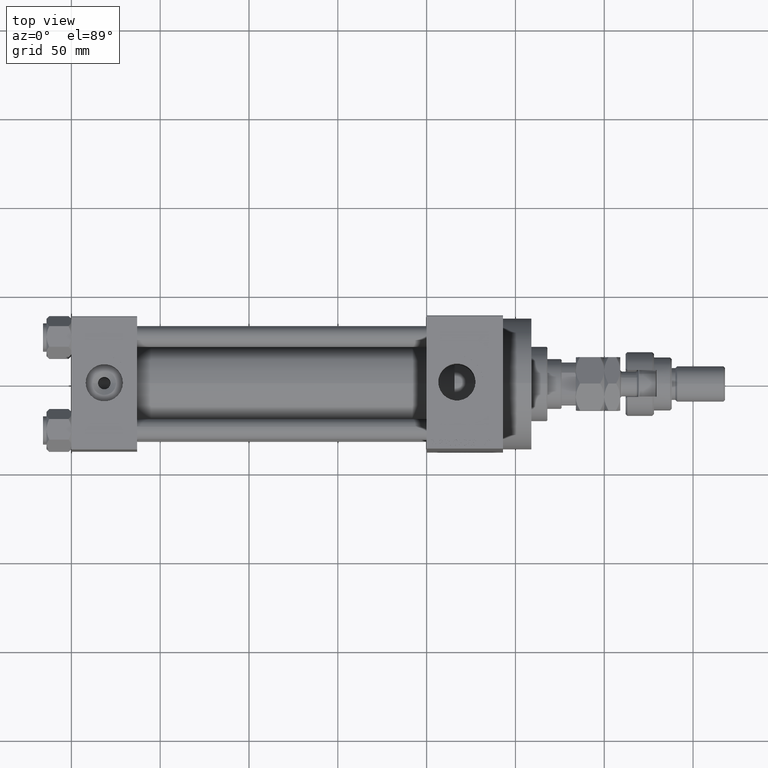
[diagram: clean part render]
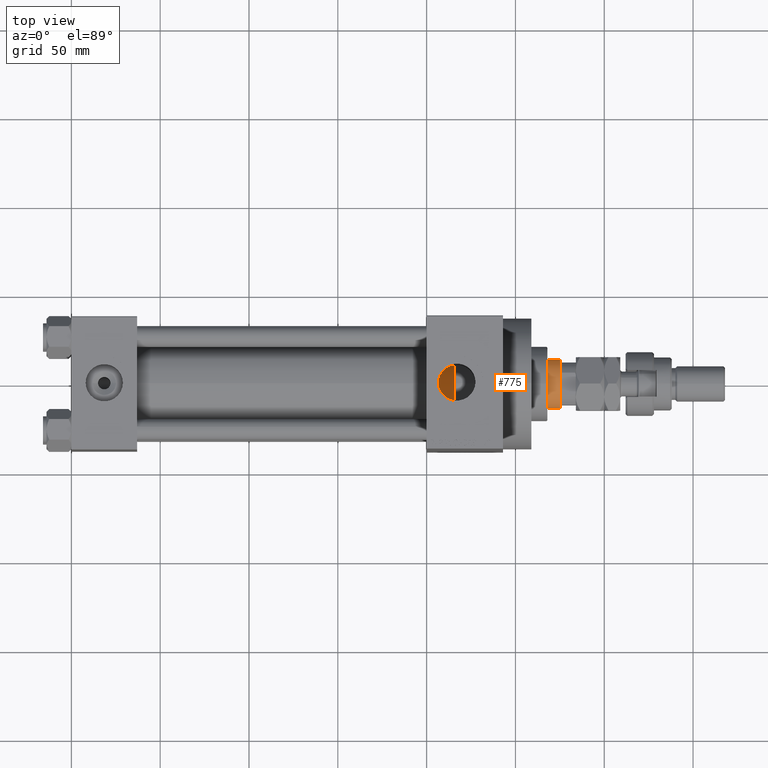
[diagram: same view with one face highlighted and labeled with its STEP entity id]
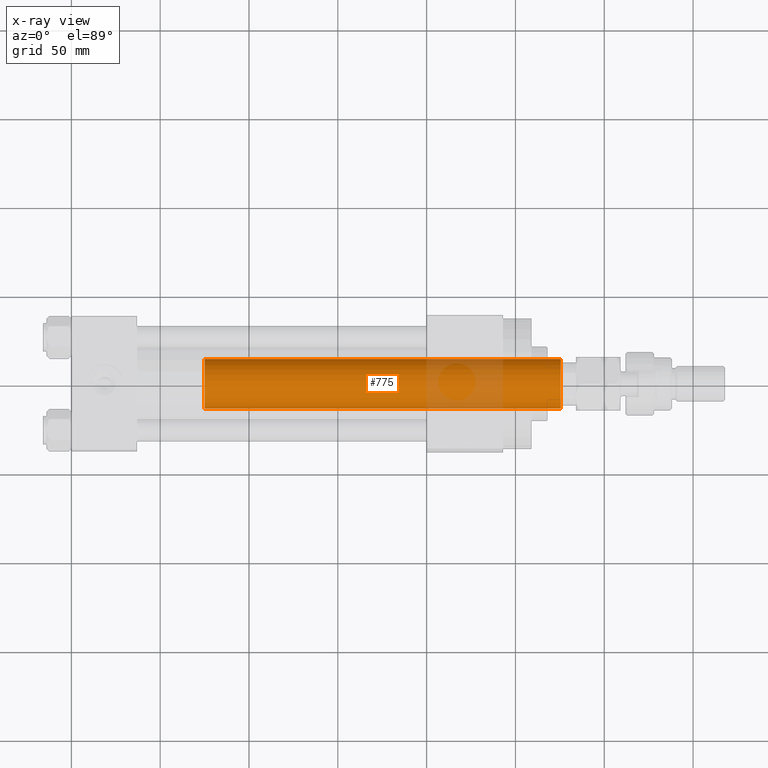
[diagram: x-ray of the same camera — body ghosted, the highlighted face saturated]
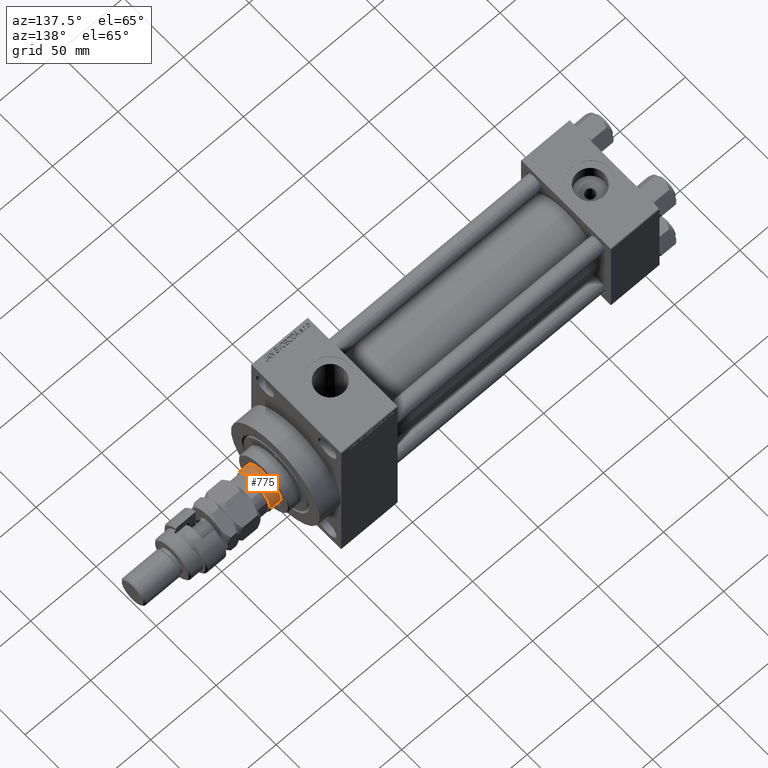
[diagram: same view with one face highlighted and labeled with its STEP entity id]
A machine part, top view. The second image highlights one B-rep face of the part: STEP entity #775.
The next image is the same camera in x-ray: the body ghosted, the highlighted face saturated — about 15% of this face is hidden behind the body in this view.
A second angle (auxiliary view) of the same face is appended — the face is thin or edge-on in the first view.
In plain terms, the highlighted cylindrical surface (edge-blend (fillet) strip) has radius 14 mm, axis along (-1, 0, 0).
Its self-contained STEP definition (entity closure, byte-faithful):
#188 = VERTEX_POINT ( 'NONE', #32865 ) ;
#202 = DIRECTION ( 'NONE',  ( -0.000000000000000000, -0.000000000000000000, -1.000000000000000000 ) ) ;
#504 = EDGE_CURVE ( 'NONE', #48880, #17581, #49741, .T. ) ;
#775 = ADVANCED_FACE ( 'NONE', ( #29598 ), #2669, .T. ) ;
#2421 = CARTESIAN_POINT ( 'NONE',  ( 0.000000000000000000, 0.000000000000000000, 239.0000000000000284 ) ) ;
#2669 = CYLINDRICAL_SURFACE ( 'NONE', #45499, 14.00000000000000178 ) ;
#3557 = EDGE_CURVE ( 'NONE', #18735, #188, #23255, .T. ) ;
#4352 = CARTESIAN_POINT ( 'NONE',  ( 0.000000000000000000, 0.000000000000000000, 38.00000000000000000 ) ) ;
#4698 = DIRECTION ( 'NONE',  ( -0.000000000000000000, -0.000000000000000000, -1.000000000000000000 ) ) ;
#7034 = CARTESIAN_POINT ( 'NONE',  ( 14.00000000000000178, 1.714505518806294835E-15, 239.0000000000000284 ) ) ;
#7753 = DIRECTION ( 'NONE',  ( 1.000000000000000000, 0.000000000000000000, 0.000000000000000000 ) ) ;
#10047 = CIRCLE ( 'NONE', #38458, 14.00000000000000178 ) ;
#10049 = DIRECTION ( 'NONE',  ( -1.000000000000000000, 0.000000000000000000, 0.000000000000000000 ) ) ;
#14338 = DIRECTION ( 'NONE',  ( -0.000000000000000000, -0.000000000000000000, -1.000000000000000000 ) ) ;
#15127 = CARTESIAN_POINT ( 'NONE',  ( 14.00000000000000178, 1.714505518806294835E-15, 238.5000000000000284 ) ) ;
#17581 = VERTEX_POINT ( 'NONE', #29043 ) ;
#18735 = VERTEX_POINT ( 'NONE', #41303 ) ;
#22638 = DIRECTION ( 'NONE',  ( 0.000000000000000000, 0.000000000000000000, 1.000000000000000000 ) ) ;
#23255 = LINE ( 'NONE', #31381, #37452 ) ;
#24436 = EDGE_LOOP ( 'NONE', ( #26492, #39966, #40959, #31385 ) ) ;
#26492 = ORIENTED_EDGE ( 'NONE', *, *, #504, .F. ) ;
#26710 = DIRECTION ( 'NONE',  ( 1.000000000000000000, 0.000000000000000000, 0.000000000000000000 ) ) ;
#27082 = CARTESIAN_POINT ( 'NONE',  ( 0.000000000000000000, 0.000000000000000000, 238.5000000000000284 ) ) ;
#29043 = CARTESIAN_POINT ( 'NONE',  ( 14.00000000000000178, 1.714505518806294835E-15, 38.00000000000000000 ) ) ;
#29598 = FACE_OUTER_BOUND ( 'NONE', #24436, .T. ) ;
#31381 = CARTESIAN_POINT ( 'NONE',  ( -14.00000000000000178, 0.000000000000000000, 239.0000000000000284 ) ) ;
#31385 = ORIENTED_EDGE ( 'NONE', *, *, #44947, .T. ) ;
#32849 = EDGE_CURVE ( 'NONE', #48880, #18735, #47074, .T. ) ;
#32865 = CARTESIAN_POINT ( 'NONE',  ( -14.00000000000000178, 0.000000000000000000, 38.00000000000000000 ) ) ;
#34065 = AXIS2_PLACEMENT_3D ( 'NONE', #27082, #42570, #7753 ) ;
#37452 = VECTOR ( 'NONE', #4698, 1000.000000000000000 ) ;
#38175 = VECTOR ( 'NONE', #202, 1000.000000000000000 ) ;
#38458 = AXIS2_PLACEMENT_3D ( 'NONE', #4352, #22638, #26710 ) ;
#39966 = ORIENTED_EDGE ( 'NONE', *, *, #32849, .T. ) ;
#40959 = ORIENTED_EDGE ( 'NONE', *, *, #3557, .T. ) ;
#41303 = CARTESIAN_POINT ( 'NONE',  ( -14.00000000000000178, 0.000000000000000000, 238.5000000000000284 ) ) ;
#42570 = DIRECTION ( 'NONE',  ( 0.000000000000000000, 0.000000000000000000, -1.000000000000000000 ) ) ;
#44947 = EDGE_CURVE ( 'NONE', #188, #17581, #10047, .T. ) ;
#45499 = AXIS2_PLACEMENT_3D ( 'NONE', #2421, #14338, #10049 ) ;
#47074 = CIRCLE ( 'NONE', #34065, 14.00000000000000178 ) ;
#48880 = VERTEX_POINT ( 'NONE', #15127 ) ;
#49741 = LINE ( 'NONE', #7034, #38175 ) ;